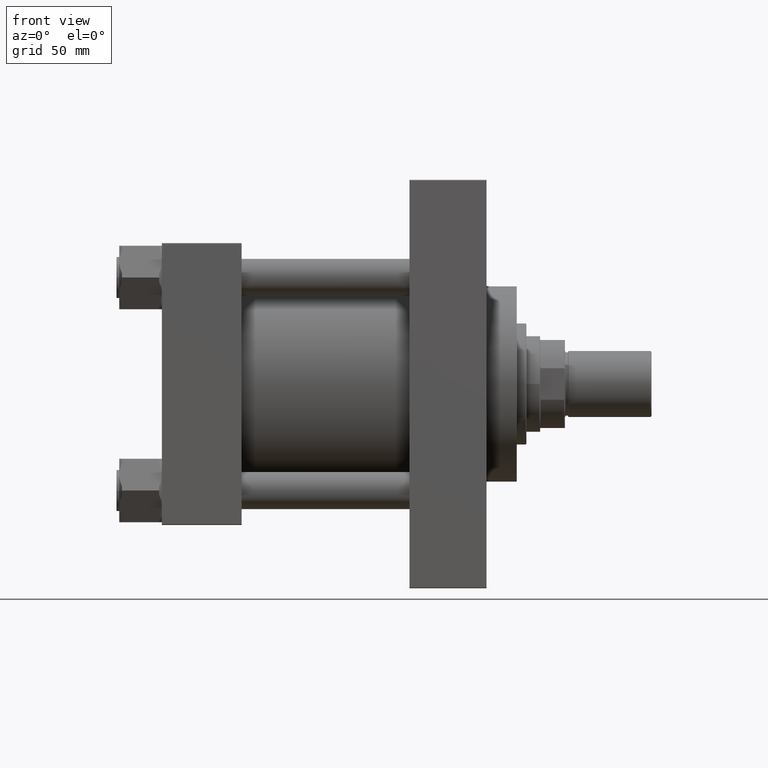
[diagram: clean part render]
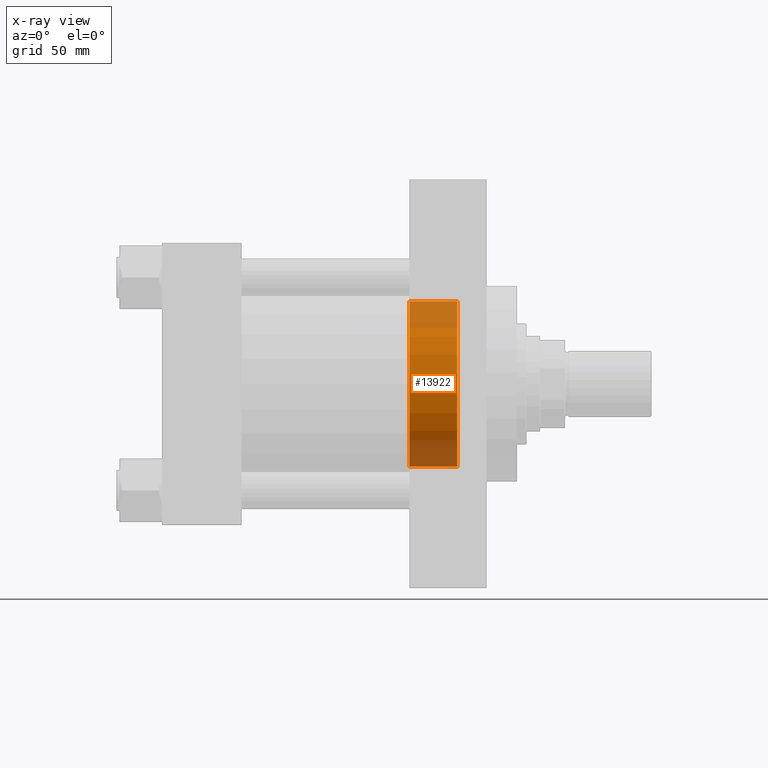
[diagram: x-ray — body ghosted, one internal face saturated and labeled with its STEP entity id]
A machine part, front view, then the same camera in x-ray: the body is ghosted and one INTERNAL B-rep face — a face not visible from any outside direction — is saturated and labeled: STEP entity #13922.
In plain terms, the highlighted cylindrical surface (partial cylindrical patch) has radius 60 mm, axis along (1, 0, 0).
Its self-contained STEP definition (entity closure, byte-faithful):
#604 = FACE_OUTER_BOUND ( 'NONE', #7888, .T. ) ;
#1070 = DIRECTION ( 'NONE',  ( 1.000000000000000000, -0.000000000000000000, -0.000000000000000000 ) ) ;
#1481 = VERTEX_POINT ( 'NONE', #46827 ) ;
#2476 = EDGE_CURVE ( 'NONE', #40099, #14920, #15937, .T. ) ;
#3014 = DIRECTION ( 'NONE',  ( 0.000000000000000000, 0.000000000000000000, 1.000000000000000000 ) ) ;
#3927 = CARTESIAN_POINT ( 'NONE',  ( 214.7400000000000091, 7.347880794884118356E-15, 60.00000000000000000 ) ) ;
#4033 = DIRECTION ( 'NONE',  ( 0.000000000000000000, 0.000000000000000000, -1.000000000000000000 ) ) ;
#4652 = CARTESIAN_POINT ( 'NONE',  ( 180.0000000000000284, 7.347880794884118356E-15, 60.00000000000000000 ) ) ;
#7888 = EDGE_LOOP ( 'NONE', ( #43089, #30405, #31978, #25485 ) ) ;
#8441 = VECTOR ( 'NONE', #1070, 1000.000000000000000 ) ;
#10557 = DIRECTION ( 'NONE',  ( 1.000000000000000000, 0.000000000000000000, 0.000000000000000000 ) ) ;
#13922 = ADVANCED_FACE ( 'NONE', ( #604 ), #19371, .F. ) ;
#14920 = VERTEX_POINT ( 'NONE', #3927 ) ;
#15937 = LINE ( 'NONE', #27644, #8441 ) ;
#17618 = CARTESIAN_POINT ( 'NONE',  ( 214.7400000000000091, 0.000000000000000000, 0.000000000000000000 ) ) ;
#18906 = CIRCLE ( 'NONE', #41440, 60.00000000000000000 ) ;
#19326 = EDGE_CURVE ( 'NONE', #14920, #34542, #30669, .T. ) ;
#19371 = CYLINDRICAL_SURFACE ( 'NONE', #20377, 60.00000000000000000 ) ;
#20377 = AXIS2_PLACEMENT_3D ( 'NONE', #22534, #23020, #4033 ) ;
#22534 = CARTESIAN_POINT ( 'NONE',  ( -111.7056274847714405, 0.000000000000000000, 0.000000000000000000 ) ) ;
#23020 = DIRECTION ( 'NONE',  ( 1.000000000000000000, -0.000000000000000000, -0.000000000000000000 ) ) ;
#25485 = ORIENTED_EDGE ( 'NONE', *, *, #30077, .F. ) ;
#27644 = CARTESIAN_POINT ( 'NONE',  ( -111.7056274847714405, 7.347880794884118356E-15, 60.00000000000000000 ) ) ;
#28252 = CARTESIAN_POINT ( 'NONE',  ( -111.7056274847714405, 0.000000000000000000, -60.00000000000000000 ) ) ;
#30077 = EDGE_CURVE ( 'NONE', #1481, #34542, #46008, .T. ) ;
#30405 = ORIENTED_EDGE ( 'NONE', *, *, #2476, .T. ) ;
#30669 = CIRCLE ( 'NONE', #46950, 60.00000000000000000 ) ;
#31978 = ORIENTED_EDGE ( 'NONE', *, *, #19326, .T. ) ;
#34449 = EDGE_CURVE ( 'NONE', #1481, #40099, #18906, .T. ) ;
#34542 = VERTEX_POINT ( 'NONE', #37582 ) ;
#37386 = VECTOR ( 'NONE', #46256, 1000.000000000000000 ) ;
#37582 = CARTESIAN_POINT ( 'NONE',  ( 214.7400000000000091, 0.000000000000000000, -60.00000000000000000 ) ) ;
#39779 = CARTESIAN_POINT ( 'NONE',  ( 180.0000000000000284, 0.000000000000000000, 0.000000000000000000 ) ) ;
#40099 = VERTEX_POINT ( 'NONE', #4652 ) ;
#41440 = AXIS2_PLACEMENT_3D ( 'NONE', #39779, #48052, #3014 ) ;
#43089 = ORIENTED_EDGE ( 'NONE', *, *, #34449, .T. ) ;
#46008 = LINE ( 'NONE', #28252, #37386 ) ;
#46256 = DIRECTION ( 'NONE',  ( 1.000000000000000000, -0.000000000000000000, -0.000000000000000000 ) ) ;
#46827 = CARTESIAN_POINT ( 'NONE',  ( 180.0000000000000284, 0.000000000000000000, -60.00000000000000000 ) ) ;
#46950 = AXIS2_PLACEMENT_3D ( 'NONE', #17618, #10557, #47550 ) ;
#47550 = DIRECTION ( 'NONE',  ( 0.000000000000000000, 0.000000000000000000, -1.000000000000000000 ) ) ;
#48052 = DIRECTION ( 'NONE',  ( -1.000000000000000000, 0.000000000000000000, -0.000000000000000000 ) ) ;